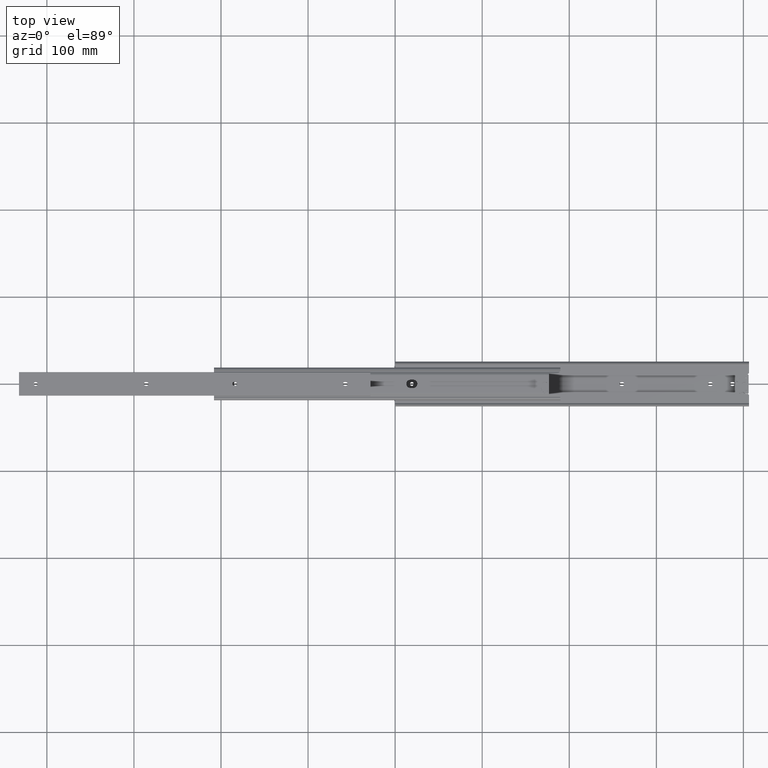
[diagram: clean part render]
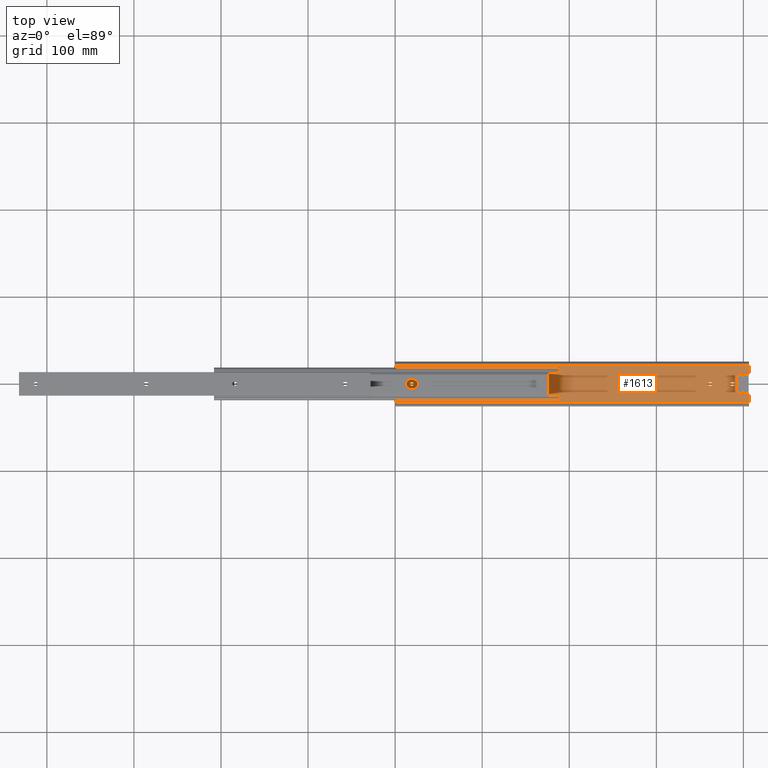
[diagram: same view with one face highlighted and labeled with its STEP entity id]
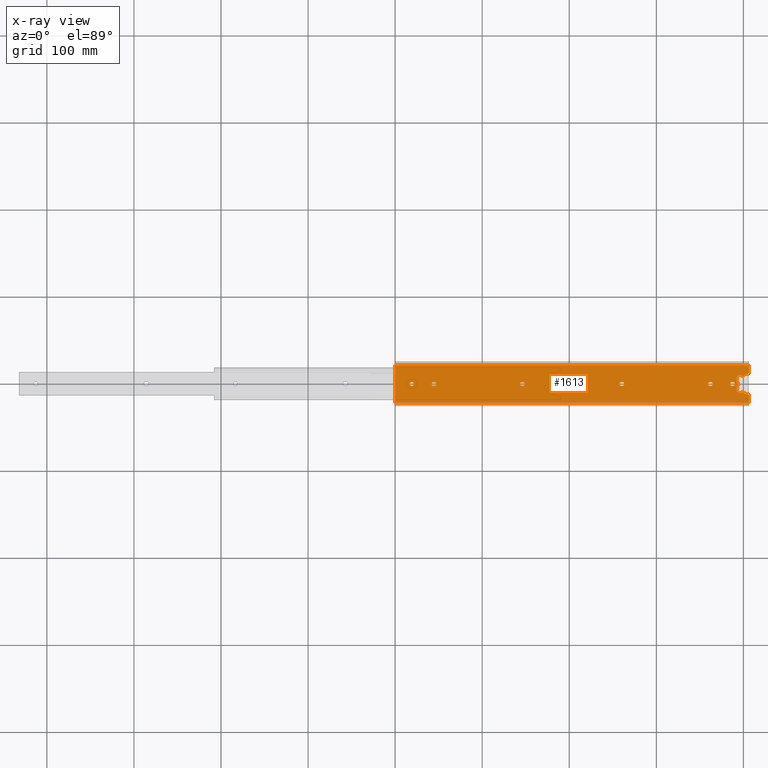
[diagram: x-ray of the same camera — body ghosted, the highlighted face saturated]
A machine part, top view. The second image highlights one B-rep face of the part: STEP entity #1613.
The next image is the same camera in x-ray: the body ghosted, the highlighted face saturated — about 0% of this face is hidden behind the body in this view.
In plain terms, the highlighted planar face has unit normal (0, 0, 1).
Its self-contained STEP definition (entity closure, byte-faithful):
#7 = CARTESIAN_POINT ( 'NONE',  ( 387.0000000000000000, 3.415968549201668300E-014, 1.799999999999928300 ) ) ;
#10 = VERTEX_POINT ( 'NONE', #342 ) ;
#14 = CIRCLE ( 'NONE', #4969, 2.000000000000001800 ) ;
#24 = EDGE_CURVE ( 'NONE', #1105, #7418, #5876, .T. ) ;
#26 = ORIENTED_EDGE ( 'NONE', *, *, #7127, .T. ) ;
#35 = DIRECTION ( 'NONE',  ( -1.392637613640382600E-014, 1.000000000000000000, 0.0000000000000000000 ) ) ;
#38 = CIRCLE ( 'NONE', #7074, 2.249999999999998700 ) ;
#52 = CARTESIAN_POINT ( 'NONE',  ( 44.90000000000000600, 5.374174154884625500E-015, 1.799999999999928300 ) ) ;
#62 = EDGE_CURVE ( 'NONE', #2327, #589, #5497, .T. ) ;
#67 = ORIENTED_EDGE ( 'NONE', *, *, #4934, .T. ) ;
#76 = DIRECTION ( 'NONE',  ( 1.000000000000000000, 0.0000000000000000000, 0.0000000000000000000 ) ) ;
#87 = CARTESIAN_POINT ( 'NONE',  ( 0.0000000000000000000, 21.29985872422196300, 1.799999999999928300 ) ) ;
#120 = DIRECTION ( 'NONE',  ( 1.000000000000000000, 0.0000000000000000000, 0.0000000000000000000 ) ) ;
#128 = DIRECTION ( 'NONE',  ( 1.000000000000000000, 0.0000000000000000000, 0.0000000000000000000 ) ) ;
#137 = EDGE_CURVE ( 'NONE', #6143, #7432, #291, .T. ) ;
#156 = DIRECTION ( 'NONE',  ( -0.0000000000000000000, -0.0000000000000000000, -1.000000000000000000 ) ) ;
#172 = DIRECTION ( 'NONE',  ( -0.0000000000000000000, -0.0000000000000000000, -1.000000000000000000 ) ) ;
#201 = ORIENTED_EDGE ( 'NONE', *, *, #261, .T. ) ;
#210 = DIRECTION ( 'NONE',  ( -1.000000000000000000, -0.0000000000000000000, 0.0000000000000000000 ) ) ;
#229 = CARTESIAN_POINT ( 'NONE',  ( 145.6999999999999900, 5.324886414075671300E-014, 1.799999999999928300 ) ) ;
#237 = CARTESIAN_POINT ( 'NONE',  ( 406.3999999999999800, -2.250000000000000400, 1.799999999999928300 ) ) ;
#238 = DIRECTION ( 'NONE',  ( 1.000000000000000000, 0.0000000000000000000, 0.0000000000000000000 ) ) ;
#244 = CIRCLE ( 'NONE', #2771, 2.249999999999974200 ) ;
#260 = CARTESIAN_POINT ( 'NONE',  ( 392.5999999999995700, 7.179898987321528200, 1.799999999999928300 ) ) ;
#261 = EDGE_CURVE ( 'NONE', #7385, #3245, #5774, .T. ) ;
#284 = CARTESIAN_POINT ( 'NONE',  ( 387.8000000000000700, 3.420867136398258000E-014, 1.799999999999928300 ) ) ;
#291 = LINE ( 'NONE', #4374, #4919 ) ;
#292 = DIRECTION ( 'NONE',  ( -0.0000000000000000000, -0.0000000000000000000, -1.000000000000000000 ) ) ;
#312 = EDGE_CURVE ( 'NONE', #1344, #2898, #785, .T. ) ;
#337 = VECTOR ( 'NONE', #4689, 1000.000000000000000 ) ;
#341 = CARTESIAN_POINT ( 'NONE',  ( 0.0000000000000000000, -21.29985872422196300, 1.799999999999928300 ) ) ;
#342 = CARTESIAN_POINT ( 'NONE',  ( 361.5999999999999100, -2.249999999999957400, 1.799999999999928300 ) ) ;
#366 = VERTEX_POINT ( 'NONE', #823 ) ;
#371 = AXIS2_PLACEMENT_3D ( 'NONE', #5198, #1604, #3155 ) ;
#374 = ORIENTED_EDGE ( 'NONE', *, *, #24, .T. ) ;
#377 = ORIENTED_EDGE ( 'NONE', *, *, #5664, .T. ) ;
#387 = LINE ( 'NONE', #3538, #6639 ) ;
#402 = DIRECTION ( 'NONE',  ( 1.000000000000000000, 0.0000000000000000000, 0.0000000000000000000 ) ) ;
#422 = AXIS2_PLACEMENT_3D ( 'NONE', #1854, #6084, #2460 ) ;
#432 = CARTESIAN_POINT ( 'NONE',  ( 406.3999999999999800, -2.249999999999954700, 1.799999999999928300 ) ) ;
#451 = EDGE_CURVE ( 'NONE', #1597, #6023, #1858, .T. ) ;
#477 = AXIS2_PLACEMENT_3D ( 'NONE', #2343, #6563, #2929 ) ;
#485 = VECTOR ( 'NONE', #1639, 1000.000000000000000 ) ;
#515 = LINE ( 'NONE', #834, #6750 ) ;
#532 = CARTESIAN_POINT ( 'NONE',  ( 145.6999999999999900, 5.324886414075671300E-014, 1.799999999999928300 ) ) ;
#548 = VERTEX_POINT ( 'NONE', #3202 ) ;
#568 = ORIENTED_EDGE ( 'NONE', *, *, #4998, .T. ) ;
#589 = VERTEX_POINT ( 'NONE', #7184 ) ;
#632 = AXIS2_PLACEMENT_3D ( 'NONE', #715, #4913, #1313 ) ;
#639 = DIRECTION ( 'NONE',  ( 1.000000000000000000, 0.0000000000000000000, 0.0000000000000000000 ) ) ;
#662 = CARTESIAN_POINT ( 'NONE',  ( 391.9999999999996000, 3.442382895611694400, 1.799999999999928300 ) ) ;
#676 = DIRECTION ( 'NONE',  ( 1.000000000000000000, 0.0000000000000000000, 0.0000000000000000000 ) ) ;
#703 = AXIS2_PLACEMENT_3D ( 'NONE', #3742, #3188, #3130 ) ;
#708 = ORIENTED_EDGE ( 'NONE', *, *, #2615, .F. ) ;
#715 = CARTESIAN_POINT ( 'NONE',  ( 401.7990452568617500, 10.50000000000000500, 1.799999999999928300 ) ) ;
#743 = ORIENTED_EDGE ( 'NONE', *, *, #4733, .T. ) ;
#775 = VERTEX_POINT ( 'NONE', #6392 ) ;
#785 = LINE ( 'NONE', #5083, #3589 ) ;
#804 = CARTESIAN_POINT ( 'NONE',  ( 387.0000000000000000, -2.250000000000000400, 1.799999999999928300 ) ) ;
#812 = ORIENTED_EDGE ( 'NONE', *, *, #5839, .T. ) ;
#823 = CARTESIAN_POINT ( 'NONE',  ( 260.0000000000000000, -2.249999999999954700, 1.799999999999928300 ) ) ;
#832 = CARTESIAN_POINT ( 'NONE',  ( 402.0317541634481100, 11.10000000000000500, 1.799999999999912800 ) ) ;
#834 = CARTESIAN_POINT ( 'NONE',  ( 394.5856957026417700, 10.01412282738758800, 1.799999999999928300 ) ) ;
#867 = DIRECTION ( 'NONE',  ( -1.000000000000000000, -0.0000000000000000000, 0.0000000000000000000 ) ) ;
#881 = CIRCLE ( 'NONE', #4940, 2.399999999999902200 ) ;
#889 = ORIENTED_EDGE ( 'NONE', *, *, #6912, .T. ) ;
#909 = DIRECTION ( 'NONE',  ( 1.000000000000000000, 0.0000000000000000000, 0.0000000000000000000 ) ) ;
#910 = DIRECTION ( 'NONE',  ( -0.0000000000000000000, -0.0000000000000000000, -1.000000000000000000 ) ) ;
#928 = VERTEX_POINT ( 'NONE', #2919 ) ;
#946 = DIRECTION ( 'NONE',  ( 0.0000000000000000000, 1.000000000000000000, 0.0000000000000000000 ) ) ;
#964 = VECTOR ( 'NONE', #946, 1000.000000000000000 ) ;
#968 = CARTESIAN_POINT ( 'NONE',  ( 44.90000000000004800, 2.250000000000000000, 1.799999999999928300 ) ) ;
#982 = FACE_BOUND ( 'NONE', #2255, .T. ) ;
#1002 = VERTEX_POINT ( 'NONE', #5232 ) ;
#1013 = VERTEX_POINT ( 'NONE', #2483 ) ;
#1105 = VERTEX_POINT ( 'NONE', #1122 ) ;
#1122 = CARTESIAN_POINT ( 'NONE',  ( 397.3962538539281000, -10.03176882133008400, 1.799999999999928300 ) ) ;
#1140 = DIRECTION ( 'NONE',  ( 1.000000000000000000, 0.0000000000000000000, 0.0000000000000000000 ) ) ;
#1147 = VERTEX_POINT ( 'NONE', #1276 ) ;
#1160 = CARTESIAN_POINT ( 'NONE',  ( 406.3999999999999800, -2.249999999999957400, 1.799999999999928300 ) ) ;
#1174 = FACE_BOUND ( 'NONE', #3352, .T. ) ;
#1198 = ORIENTED_EDGE ( 'NONE', *, *, #5614, .T. ) ;
#1224 = VECTOR ( 'NONE', #1583, 1000.000000000000000 ) ;
#1242 = DIRECTION ( 'NONE',  ( -0.0000000000000000000, -0.0000000000000000000, -1.000000000000000000 ) ) ;
#1265 = CIRCLE ( 'NONE', #1481, 0.5999999999999894300 ) ;
#1276 = CARTESIAN_POINT ( 'NONE',  ( 257.7500000000000600, 7.005605702383383900E-014, 1.799999999999928300 ) ) ;
#1285 = VERTEX_POINT ( 'NONE', #832 ) ;
#1313 = DIRECTION ( 'NONE',  ( 1.000000000000000000, 1.069746143519049900E-013, 0.0000000000000000000 ) ) ;
#1323 = CARTESIAN_POINT ( 'NONE',  ( 399.0718673606240800, 11.75000028890883100, 1.799999999999928300 ) ) ;
#1333 = DIRECTION ( 'NONE',  ( -0.0000000000000000000, -0.0000000000000000000, -1.000000000000000000 ) ) ;
#1335 = CARTESIAN_POINT ( 'NONE',  ( 401.7990452568617500, 11.10000000000000500, 1.799999999999928300 ) ) ;
#1344 = VERTEX_POINT ( 'NONE', #7344 ) ;
#1391 = ORIENTED_EDGE ( 'NONE', *, *, #451, .T. ) ;
#1392 = CARTESIAN_POINT ( 'NONE',  ( 406.3999999999999800, 21.29985872422196300, 1.799999999999928300 ) ) ;
#1414 = DIRECTION ( 'NONE',  ( -0.0000000000000000000, -0.0000000000000000000, -1.000000000000000000 ) ) ;
#1465 = ORIENTED_EDGE ( 'NONE', *, *, #5936, .T. ) ;
#1480 = CARTESIAN_POINT ( 'NONE',  ( 401.2536096776141800, -10.75000005778177200, 1.799999999999928300 ) ) ;
#1481 = AXIS2_PLACEMENT_3D ( 'NONE', #4842, #1242, #5461 ) ;
#1530 = AXIS2_PLACEMENT_3D ( 'NONE', #4936, #1333, #5561 ) ;
#1531 = CARTESIAN_POINT ( 'NONE',  ( 391.9999999999995500, -7.179898987321504200, 1.799999999999928300 ) ) ;
#1558 = CIRCLE ( 'NONE', #7623, 2.250000000000001800 ) ;
#1583 = DIRECTION ( 'NONE',  ( -1.000000000000000000, 0.0000000000000000000, 0.0000000000000000000 ) ) ;
#1597 = VERTEX_POINT ( 'NONE', #3761 ) ;
#1604 = DIRECTION ( 'NONE',  ( -0.0000000000000000000, -0.0000000000000000000, -1.000000000000000000 ) ) ;
#1606 = EDGE_CURVE ( 'NONE', #1002, #4125, #7574, .T. ) ;
#1613 = ADVANCED_FACE ( 'NONE', ( #5790, #1174, #4371, #7382, #4180, #2578, #982 ), #3232, .T. ) ;
#1629 = AXIS2_PLACEMENT_3D ( 'NONE', #7293, #3685, #76 ) ;
#1639 = DIRECTION ( 'NONE',  ( 0.0000000000000000000, 1.000000000000000000, 0.0000000000000000000 ) ) ;
#1651 = VERTEX_POINT ( 'NONE', #2579 ) ;
#1658 = VERTEX_POINT ( 'NONE', #6611 ) ;
#1682 = EDGE_CURVE ( 'NONE', #928, #3638, #5227, .T. ) ;
#1691 = CARTESIAN_POINT ( 'NONE',  ( 391.9999999999996000, -3.442382895611694400, 1.799999999999928300 ) ) ;
#1692 = CIRCLE ( 'NONE', #1530, 2.249999999999974200 ) ;
#1727 = CIRCLE ( 'NONE', #5534, 2.249999999999998700 ) ;
#1736 = CIRCLE ( 'NONE', #4199, 2.249999999999974200 ) ;
#1752 = ORIENTED_EDGE ( 'NONE', *, *, #4544, .T. ) ;
#1771 = CIRCLE ( 'NONE', #4029, 2.250000000000001800 ) ;
#1781 = EDGE_CURVE ( 'NONE', #7385, #7411, #4652, .T. ) ;
#1846 = CARTESIAN_POINT ( 'NONE',  ( 145.6999999999999900, -2.249999999999957800, 1.799999999999928300 ) ) ;
#1854 = CARTESIAN_POINT ( 'NONE',  ( 402.9999999999999400, 9.350000000000001400, 1.799999999999912800 ) ) ;
#1858 = CIRCLE ( 'NONE', #4258, 2.250000000000001800 ) ;
#1876 = EDGE_CURVE ( 'NONE', #6458, #7777, #3230, .T. ) ;
#1877 = AXIS2_PLACEMENT_3D ( 'NONE', #3210, #7428, #3815 ) ;
#1884 = VECTOR ( 'NONE', #3473, 1000.000000000000000 ) ;
#1903 = LINE ( 'NONE', #5269, #485 ) ;
#1930 = DIRECTION ( 'NONE',  ( 1.000000000000000000, 0.0000000000000000000, 0.0000000000000000000 ) ) ;
#1942 = ORIENTED_EDGE ( 'NONE', *, *, #4021, .T. ) ;
#1956 = DIRECTION ( 'NONE',  ( -0.0000000000000000000, -0.0000000000000000000, -1.000000000000000000 ) ) ;
#1970 = CIRCLE ( 'NONE', #1629, 2.000000000000001800 ) ;
#1996 = AXIS2_PLACEMENT_3D ( 'NONE', #260, #5925, #6956 ) ;
#2028 = CARTESIAN_POINT ( 'NONE',  ( 387.0000000000000000, 2.249999999999999600, 1.799999999999928300 ) ) ;
#2036 = LINE ( 'NONE', #4430, #2415 ) ;
#2057 = ORIENTED_EDGE ( 'NONE', *, *, #5590, .F. ) ;
#2070 = LINE ( 'NONE', #6063, #5094 ) ;
#2088 = VERTEX_POINT ( 'NONE', #5334 ) ;
#2143 = EDGE_CURVE ( 'NONE', #6772, #4469, #5410, .T. ) ;
#2201 = EDGE_LOOP ( 'NONE', ( #2227, #812, #4247, #7521, #3512 ) ) ;
#2220 = CIRCLE ( 'NONE', #5472, 2.000000000000001800 ) ;
#2226 = LINE ( 'NONE', #662, #6853 ) ;
#2227 = ORIENTED_EDGE ( 'NONE', *, *, #312, .T. ) ;
#2235 = CIRCLE ( 'NONE', #1877, 2.249999999999974200 ) ;
#2246 = CARTESIAN_POINT ( 'NONE',  ( 16.85000000000000500, 0.0000000000000000000, 1.799999999999928300 ) ) ;
#2255 = EDGE_LOOP ( 'NONE', ( #1198, #3760, #1752, #7226, #377 ) ) ;
#2274 = VECTOR ( 'NONE', #3980, 1000.000000000000000 ) ;
#2310 = AXIS2_PLACEMENT_3D ( 'NONE', #229, #156, #128 ) ;
#2320 = ORIENTED_EDGE ( 'NONE', *, *, #6039, .T. ) ;
#2327 = VERTEX_POINT ( 'NONE', #3281 ) ;
#2337 = LINE ( 'NONE', #4072, #337 ) ;
#2343 = CARTESIAN_POINT ( 'NONE',  ( 260.8000000000000100, 7.010504289579973500E-014, 1.799999999999928300 ) ) ;
#2366 = EDGE_CURVE ( 'NONE', #1105, #4098, #881, .T. ) ;
#2415 = VECTOR ( 'NONE', #3818, 1000.000000000000000 ) ;
#2421 = CARTESIAN_POINT ( 'NONE',  ( 145.6999999999999900, 2.250000000000041700, 1.799999999999928300 ) ) ;
#2424 = EDGE_CURVE ( 'NONE', #4750, #7381, #6542, .T. ) ;
#2428 = CARTESIAN_POINT ( 'NONE',  ( 395.9999092650148200, 8.599909265014520800, 1.799999999999928300 ) ) ;
#2460 = DIRECTION ( 'NONE',  ( 1.000000000000000000, -1.647987302177965200E-014, 0.0000000000000000000 ) ) ;
#2483 = CARTESIAN_POINT ( 'NONE',  ( 391.9999999999996000, 3.442382895611694400, 1.799999999999928300 ) ) ;
#2504 = CARTESIAN_POINT ( 'NONE',  ( 44.09999999999999400, 2.250000000000000000, 1.799999999999928300 ) ) ;
#2551 = CARTESIAN_POINT ( 'NONE',  ( 44.09999999999999400, 5.325188282918731300E-015, 1.799999999999928300 ) ) ;
#2578 = FACE_BOUND ( 'NONE', #7793, .T. ) ;
#2579 = CARTESIAN_POINT ( 'NONE',  ( 387.8000000000000100, -2.249999999999965400, 1.799999999999928300 ) ) ;
#2615 = EDGE_CURVE ( 'NONE', #2088, #3333, #387, .T. ) ;
#2641 = ORIENTED_EDGE ( 'NONE', *, *, #4749, .T. ) ;
#2667 = EDGE_CURVE ( 'NONE', #2802, #775, #3216, .T. ) ;
#2680 = CARTESIAN_POINT ( 'NONE',  ( 404.3999999999999800, -11.35000000000000100, 1.799999999999928300 ) ) ;
#2690 = ORIENTED_EDGE ( 'NONE', *, *, #3921, .F. ) ;
#2751 = VERTEX_POINT ( 'NONE', #7711 ) ;
#2771 = AXIS2_PLACEMENT_3D ( 'NONE', #7340, #3734, #120 ) ;
#2778 = DIRECTION ( 'NONE',  ( -0.0000000000000000000, -0.0000000000000000000, -1.000000000000000000 ) ) ;
#2802 = VERTEX_POINT ( 'NONE', #5382 ) ;
#2822 = DIRECTION ( 'NONE',  ( 0.0000000000000000000, 0.0000000000000000000, 1.000000000000000000 ) ) ;
#2836 = EDGE_CURVE ( 'NONE', #6772, #5184, #3301, .T. ) ;
#2849 = VECTOR ( 'NONE', #6000, 1000.000000000000000 ) ;
#2853 = EDGE_CURVE ( 'NONE', #4011, #6855, #3494, .T. ) ;
#2887 = ORIENTED_EDGE ( 'NONE', *, *, #2667, .T. ) ;
#2898 = VERTEX_POINT ( 'NONE', #1846 ) ;
#2904 = ORIENTED_EDGE ( 'NONE', *, *, #7427, .T. ) ;
#2919 = CARTESIAN_POINT ( 'NONE',  ( 143.4499999999999900, 5.324886414075671300E-014, 1.799999999999928300 ) ) ;
#2929 = DIRECTION ( 'NONE',  ( 1.000000000000000000, 0.0000000000000000000, 0.0000000000000000000 ) ) ;
#2985 = AXIS2_PLACEMENT_3D ( 'NONE', #6882, #3263, #7486 ) ;
#3016 = DIRECTION ( 'NONE',  ( 1.000000000000000000, 0.0000000000000000000, 0.0000000000000000000 ) ) ;
#3017 = CARTESIAN_POINT ( 'NONE',  ( 401.2536096776141800, 10.75000005778178500, 1.799999999999928300 ) ) ;
#3018 = EDGE_LOOP ( 'NONE', ( #2887, #4239, #1391, #4138, #2641 ) ) ;
#3034 = DIRECTION ( 'NONE',  ( 1.000000000000000000, 0.0000000000000000000, -0.0000000000000000000 ) ) ;
#3044 = LINE ( 'NONE', #1160, #2849 ) ;
#3045 = CARTESIAN_POINT ( 'NONE',  ( 362.4000000000000300, 2.250000000000042200, 1.799999999999928300 ) ) ;
#3092 = CARTESIAN_POINT ( 'NONE',  ( 362.3999999999999800, 7.331010313246310500E-014, 1.799999999999928300 ) ) ;
#3130 = DIRECTION ( 'NONE',  ( 1.000000000000000000, 0.0000000000000000000, -0.0000000000000000000 ) ) ;
#3153 = DIRECTION ( 'NONE',  ( 1.000000000000000000, 0.0000000000000000000, 0.0000000000000000000 ) ) ;
#3155 = DIRECTION ( 'NONE',  ( -1.000000000000000000, 0.0000000000000000000, 0.0000000000000000000 ) ) ;
#3164 = VERTEX_POINT ( 'NONE', #6895 ) ;
#3188 = DIRECTION ( 'NONE',  ( 0.0000000000000000000, 0.0000000000000000000, 1.000000000000000000 ) ) ;
#3189 = CIRCLE ( 'NONE', #4049, 2.250000000000001800 ) ;
#3202 = CARTESIAN_POINT ( 'NONE',  ( 401.7990452568617500, -11.09999999999999300, 1.799999999999928300 ) ) ;
#3210 = CARTESIAN_POINT ( 'NONE',  ( 260.0000000000000000, 7.005605702383383900E-014, 1.799999999999928300 ) ) ;
#3216 = LINE ( 'NONE', #5219, #6264 ) ;
#3228 = VERTEX_POINT ( 'NONE', #968 ) ;
#3230 = LINE ( 'NONE', #4776, #5701 ) ;
#3232 = PLANE ( 'NONE',  #703 ) ;
#3233 = CIRCLE ( 'NONE', #6094, 2.250000000000001800 ) ;
#3234 = EDGE_CURVE ( 'NONE', #3919, #4491, #3866, .T. ) ;
#3237 = DIRECTION ( 'NONE',  ( -0.7071067811865522400, -0.7071067811865428000, 0.0000000000000000000 ) ) ;
#3245 = VERTEX_POINT ( 'NONE', #7573 ) ;
#3263 = DIRECTION ( 'NONE',  ( 0.0000000000000000000, 0.0000000000000000000, 1.000000000000000000 ) ) ;
#3280 = EDGE_CURVE ( 'NONE', #7411, #7119, #1903, .T. ) ;
#3281 = CARTESIAN_POINT ( 'NONE',  ( 391.9999999999995500, 7.179898987321519300, 1.799999999999928300 ) ) ;
#3301 = CIRCLE ( 'NONE', #4228, 1.999999999999946300 ) ;
#3328 = CARTESIAN_POINT ( 'NONE',  ( 399.0718673606240800, -11.75000028890881700, 1.799999999999928300 ) ) ;
#3333 = VERTEX_POINT ( 'NONE', #2680 ) ;
#3352 = EDGE_LOOP ( 'NONE', ( #568, #2320 ) ) ;
#3473 = DIRECTION ( 'NONE',  ( -1.392637613640386800E-014, -1.000000000000000000, 0.0000000000000000000 ) ) ;
#3494 = CIRCLE ( 'NONE', #3824, 2.249999999999974200 ) ;
#3512 = ORIENTED_EDGE ( 'NONE', *, *, #3838, .T. ) ;
#3518 = LINE ( 'NONE', #237, #5333 ) ;
#3530 = LINE ( 'NONE', #3640, #4963 ) ;
#3538 = CARTESIAN_POINT ( 'NONE',  ( 406.3999999999999800, -11.35000000000000000, 1.799999999999928300 ) ) ;
#3547 = CARTESIAN_POINT ( 'NONE',  ( 362.4000000000000300, -2.249999999999926700, 1.799999999999928300 ) ) ;
#3569 = CARTESIAN_POINT ( 'NONE',  ( 406.3999999999999800, 21.29985872422196300, 1.799999999999928300 ) ) ;
#3589 = VECTOR ( 'NONE', #867, 1000.000000000000000 ) ;
#3638 = VERTEX_POINT ( 'NONE', #2421 ) ;
#3640 = CARTESIAN_POINT ( 'NONE',  ( 394.5856957026417700, -10.01412282738755800, 1.799999999999928300 ) ) ;
#3641 = ORIENTED_EDGE ( 'NONE', *, *, #2366, .F. ) ;
#3685 = DIRECTION ( 'NONE',  ( 0.0000000000000000000, 0.0000000000000000000, 1.000000000000000000 ) ) ;
#3695 = DIRECTION ( 'NONE',  ( 1.000000000000000000, 0.0000000000000000000, 0.0000000000000000000 ) ) ;
#3734 = DIRECTION ( 'NONE',  ( -0.0000000000000000000, -0.0000000000000000000, -1.000000000000000000 ) ) ;
#3742 = CARTESIAN_POINT ( 'NONE',  ( 406.3999999999999800, 0.0000000000000000000, 1.799999999999928300 ) ) ;
#3749 = CIRCLE ( 'NONE', #422, 2.000000000000001800 ) ;
#3760 = ORIENTED_EDGE ( 'NONE', *, *, #2853, .T. ) ;
#3761 = CARTESIAN_POINT ( 'NONE',  ( 41.84999999999999400, 5.325188282918731300E-015, 1.799999999999928300 ) ) ;
#3763 = ORIENTED_EDGE ( 'NONE', *, *, #3234, .T. ) ;
#3772 = VERTEX_POINT ( 'NONE', #6751 ) ;
#3776 = CARTESIAN_POINT ( 'NONE',  ( 260.0000000000000000, 7.005605702383383900E-014, 1.799999999999928300 ) ) ;
#3780 = ORIENTED_EDGE ( 'NONE', *, *, #62, .T. ) ;
#3812 = CARTESIAN_POINT ( 'NONE',  ( 406.3999999999999800, 11.35000000000000000, 1.799999999999928300 ) ) ;
#3815 = DIRECTION ( 'NONE',  ( 1.000000000000000000, 0.0000000000000000000, 0.0000000000000000000 ) ) ;
#3818 = DIRECTION ( 'NONE',  ( 0.0000000000000000000, 1.000000000000000000, 0.0000000000000000000 ) ) ;
#3824 = AXIS2_PLACEMENT_3D ( 'NONE', #7, #4230, #639 ) ;
#3838 = EDGE_CURVE ( 'NONE', #1658, #1344, #1771, .T. ) ;
#3846 = DIRECTION ( 'NONE',  ( 0.0000000000000000000, 0.0000000000000000000, 1.000000000000000000 ) ) ;
#3860 = ORIENTED_EDGE ( 'NONE', *, *, #6967, .T. ) ;
#3866 = LINE ( 'NONE', #6405, #2274 ) ;
#3899 = CARTESIAN_POINT ( 'NONE',  ( 361.5999999999999100, 7.326111726049720900E-014, 1.799999999999928300 ) ) ;
#3919 = VERTEX_POINT ( 'NONE', #5080 ) ;
#3921 = EDGE_CURVE ( 'NONE', #1285, #6714, #7417, .T. ) ;
#3929 = CARTESIAN_POINT ( 'NONE',  ( 406.3999999999999800, 0.0000000000000000000, 1.799999999999928300 ) ) ;
#3933 = EDGE_CURVE ( 'NONE', #10, #3772, #4214, .T. ) ;
#3934 = DIRECTION ( 'NONE',  ( -1.000000000000000000, 0.0000000000000000000, 0.0000000000000000000 ) ) ;
#3968 = CARTESIAN_POINT ( 'NONE',  ( 387.8000000000000100, 2.249999999999999600, 1.799999999999928300 ) ) ;
#3979 = CARTESIAN_POINT ( 'NONE',  ( 21.35000000000000100, 2.755455298081543800E-016, 1.799999999999928300 ) ) ;
#3980 = DIRECTION ( 'NONE',  ( 1.000000000000000000, 0.0000000000000000000, -0.0000000000000000000 ) ) ;
#4011 = VERTEX_POINT ( 'NONE', #804 ) ;
#4021 = EDGE_CURVE ( 'NONE', #1147, #6458, #2235, .T. ) ;
#4029 = AXIS2_PLACEMENT_3D ( 'NONE', #5027, #1414, #5646 ) ;
#4049 = AXIS2_PLACEMENT_3D ( 'NONE', #2551, #6788, #3153 ) ;
#4072 = CARTESIAN_POINT ( 'NONE',  ( 406.3999999999999800, 2.250000000000041700, 1.799999999999928300 ) ) ;
#4098 = VERTEX_POINT ( 'NONE', #1480 ) ;
#4101 = ORIENTED_EDGE ( 'NONE', *, *, #1781, .F. ) ;
#4114 = ORIENTED_EDGE ( 'NONE', *, *, #7101, .T. ) ;
#4125 = VERTEX_POINT ( 'NONE', #6345 ) ;
#4138 = ORIENTED_EDGE ( 'NONE', *, *, #7069, .T. ) ;
#4139 = ORIENTED_EDGE ( 'NONE', *, *, #6678, .T. ) ;
#4164 = DIRECTION ( 'NONE',  ( 1.000000000000000000, -1.020425574103999900E-015, 0.0000000000000000000 ) ) ;
#4180 = FACE_BOUND ( 'NONE', #6766, .T. ) ;
#4199 = AXIS2_PLACEMENT_3D ( 'NONE', #284, #4510, #909 ) ;
#4206 = ORIENTED_EDGE ( 'NONE', *, *, #3280, .F. ) ;
#4214 = CIRCLE ( 'NONE', #6476, 2.249999999999974200 ) ;
#4228 = AXIS2_PLACEMENT_3D ( 'NONE', #2428, #6652, #3016 ) ;
#4230 = DIRECTION ( 'NONE',  ( -0.0000000000000000000, -0.0000000000000000000, -1.000000000000000000 ) ) ;
#4239 = ORIENTED_EDGE ( 'NONE', *, *, #7768, .T. ) ;
#4243 = DIRECTION ( 'NONE',  ( -0.7071067811865546800, 0.7071067811865404700, 0.0000000000000000000 ) ) ;
#4247 = ORIENTED_EDGE ( 'NONE', *, *, #1682, .T. ) ;
#4258 = AXIS2_PLACEMENT_3D ( 'NONE', #5241, #4624, #402 ) ;
#4264 = ORIENTED_EDGE ( 'NONE', *, *, #7709, .F. ) ;
#4265 = DIRECTION ( 'NONE',  ( -0.0000000000000000000, -0.0000000000000000000, -1.000000000000000000 ) ) ;
#4313 = EDGE_CURVE ( 'NONE', #3638, #1658, #2337, .T. ) ;
#4371 = FACE_BOUND ( 'NONE', #3018, .T. ) ;
#4374 = CARTESIAN_POINT ( 'NONE',  ( 406.3999999999999800, 2.249999999999999600, 1.799999999999928300 ) ) ;
#4395 = DIRECTION ( 'NONE',  ( 1.000000000000000000, 0.0000000000000000000, 0.0000000000000000000 ) ) ;
#4399 = EDGE_CURVE ( 'NONE', #6761, #7119, #7598, .T. ) ;
#4416 = CARTESIAN_POINT ( 'NONE',  ( 397.3962538539281000, 10.03176882133011500, 1.799999999999928300 ) ) ;
#4430 = CARTESIAN_POINT ( 'NONE',  ( 406.3999999999999800, 0.0000000000000000000, 1.799999999999928300 ) ) ;
#4469 = VERTEX_POINT ( 'NONE', #3017 ) ;
#4491 = VERTEX_POINT ( 'NONE', #3045 ) ;
#4496 = DIRECTION ( 'NONE',  ( -1.000000000000000000, 0.0000000000000000000, 0.0000000000000000000 ) ) ;
#4498 = EDGE_CURVE ( 'NONE', #1013, #2327, #2226, .T. ) ;
#4510 = DIRECTION ( 'NONE',  ( -0.0000000000000000000, -0.0000000000000000000, -1.000000000000000000 ) ) ;
#4511 = CARTESIAN_POINT ( 'NONE',  ( 19.10000000000000100, 0.0000000000000000000, 1.799999999999928300 ) ) ;
#4519 = DIRECTION ( 'NONE',  ( 1.000000000000000000, 0.0000000000000000000, 0.0000000000000000000 ) ) ;
#4544 = EDGE_CURVE ( 'NONE', #6855, #6143, #244, .T. ) ;
#4594 = EDGE_CURVE ( 'NONE', #366, #1147, #4676, .T. ) ;
#4599 = ORIENTED_EDGE ( 'NONE', *, *, #2424, .T. ) ;
#4624 = DIRECTION ( 'NONE',  ( -0.0000000000000000000, -0.0000000000000000000, -1.000000000000000000 ) ) ;
#4641 = ORIENTED_EDGE ( 'NONE', *, *, #4498, .T. ) ;
#4652 = LINE ( 'NONE', #6110, #7663 ) ;
#4676 = CIRCLE ( 'NONE', #5207, 2.249999999999974200 ) ;
#4689 = DIRECTION ( 'NONE',  ( 1.000000000000000000, 0.0000000000000000000, -0.0000000000000000000 ) ) ;
#4733 = EDGE_CURVE ( 'NONE', #7418, #4750, #3530, .T. ) ;
#4737 = DIRECTION ( 'NONE',  ( -0.0000000000000000000, -0.0000000000000000000, -1.000000000000000000 ) ) ;
#4749 = EDGE_CURVE ( 'NONE', #3228, #2802, #1558, .T. ) ;
#4750 = VERTEX_POINT ( 'NONE', #7272 ) ;
#4776 = CARTESIAN_POINT ( 'NONE',  ( 406.3999999999999800, 2.250000000000044900, 1.799999999999928300 ) ) ;
#4808 = LINE ( 'NONE', #432, #6245 ) ;
#4838 = ORIENTED_EDGE ( 'NONE', *, *, #2143, .T. ) ;
#4842 = CARTESIAN_POINT ( 'NONE',  ( 401.7990452568617500, -10.49999999999999100, 1.799999999999928300 ) ) ;
#4885 = ORIENTED_EDGE ( 'NONE', *, *, #5868, .T. ) ;
#4904 = CIRCLE ( 'NONE', #632, 0.5999999999999894300 ) ;
#4910 = EDGE_CURVE ( 'NONE', #6695, #6761, #2036, .T. ) ;
#4913 = DIRECTION ( 'NONE',  ( -0.0000000000000000000, -0.0000000000000000000, -1.000000000000000000 ) ) ;
#4919 = VECTOR ( 'NONE', #6322, 1000.000000000000000 ) ;
#4934 = EDGE_CURVE ( 'NONE', #3245, #3333, #2220, .T. ) ;
#4936 = CARTESIAN_POINT ( 'NONE',  ( 361.5999999999999100, 7.326111726049720900E-014, 1.799999999999928300 ) ) ;
#4940 = AXIS2_PLACEMENT_3D ( 'NONE', #3328, #7552, #3934 ) ;
#4963 = VECTOR ( 'NONE', #4243, 1000.000000000000100 ) ;
#4969 = AXIS2_PLACEMENT_3D ( 'NONE', #6456, #2822, #7050 ) ;
#4973 = ORIENTED_EDGE ( 'NONE', *, *, #6332, .T. ) ;
#4998 = EDGE_CURVE ( 'NONE', #7477, #6854, #38, .T. ) ;
#5027 = CARTESIAN_POINT ( 'NONE',  ( 146.5000000000000300, 5.329785001272260300E-014, 1.799999999999928300 ) ) ;
#5080 = CARTESIAN_POINT ( 'NONE',  ( 361.5999999999999100, 2.250000000000042200, 1.799999999999928300 ) ) ;
#5083 = CARTESIAN_POINT ( 'NONE',  ( 406.3999999999999800, -2.249999999999957800, 1.799999999999928300 ) ) ;
#5094 = VECTOR ( 'NONE', #3034, 1000.000000000000000 ) ;
#5096 = AXIS2_PLACEMENT_3D ( 'NONE', #1323, #5548, #1930 ) ;
#5118 = DIRECTION ( 'NONE',  ( 1.000000000000000000, 0.0000000000000000000, 0.0000000000000000000 ) ) ;
#5184 = VERTEX_POINT ( 'NONE', #7138 ) ;
#5190 = ORIENTED_EDGE ( 'NONE', *, *, #7519, .F. ) ;
#5197 = CARTESIAN_POINT ( 'NONE',  ( 406.0000000000000000, -11.09999999999999300, 1.799999999999928300 ) ) ;
#5198 = CARTESIAN_POINT ( 'NONE',  ( 395.9999092650148200, -8.599909265014506600, 1.799999999999928300 ) ) ;
#5207 = AXIS2_PLACEMENT_3D ( 'NONE', #3776, #172, #4395 ) ;
#5212 = VERTEX_POINT ( 'NONE', #3547 ) ;
#5219 = CARTESIAN_POINT ( 'NONE',  ( 406.3999999999999800, -2.250000000000000000, 1.799999999999928300 ) ) ;
#5227 = CIRCLE ( 'NONE', #2310, 2.250000000000001800 ) ;
#5232 = CARTESIAN_POINT ( 'NONE',  ( 402.9999999999999400, 11.35000000000000300, 1.799999999999912800 ) ) ;
#5241 = CARTESIAN_POINT ( 'NONE',  ( 44.09999999999999400, 5.325188282918731300E-015, 1.799999999999928300 ) ) ;
#5268 = DIRECTION ( 'NONE',  ( -1.000000000000000000, -0.0000000000000000000, 0.0000000000000000000 ) ) ;
#5269 = CARTESIAN_POINT ( 'NONE',  ( 0.0000000000000000000, 0.0000000000000000000, 1.799999999999928300 ) ) ;
#5333 = VECTOR ( 'NONE', #210, 1000.000000000000000 ) ;
#5334 = CARTESIAN_POINT ( 'NONE',  ( 402.9999999999999400, -11.35000000000000300, 1.799999999999912800 ) ) ;
#5382 = CARTESIAN_POINT ( 'NONE',  ( 44.90000000000000600, -2.249999999999994700, 1.799999999999928300 ) ) ;
#5410 = CIRCLE ( 'NONE', #5096, 2.399999999999902200 ) ;
#5461 = DIRECTION ( 'NONE',  ( 1.000000000000000000, 3.758567531283148500E-014, 0.0000000000000000000 ) ) ;
#5472 = AXIS2_PLACEMENT_3D ( 'NONE', #7457, #3846, #238 ) ;
#5497 = CIRCLE ( 'NONE', #1996, 0.5999999999999894300 ) ;
#5520 = DIRECTION ( 'NONE',  ( -1.000000000000000000, -0.0000000000000000000, -0.0000000000000000000 ) ) ;
#5534 = AXIS2_PLACEMENT_3D ( 'NONE', #5571, #1956, #6186 ) ;
#5548 = DIRECTION ( 'NONE',  ( 0.0000000000000000000, 0.0000000000000000000, 1.000000000000000000 ) ) ;
#5561 = DIRECTION ( 'NONE',  ( 1.000000000000000000, 0.0000000000000000000, 0.0000000000000000000 ) ) ;
#5565 = CARTESIAN_POINT ( 'NONE',  ( 406.3999999999999800, 13.35000000000000100, 1.799999999999928300 ) ) ;
#5571 = CARTESIAN_POINT ( 'NONE',  ( 19.10000000000000100, 0.0000000000000000000, 1.799999999999928300 ) ) ;
#5590 = EDGE_CURVE ( 'NONE', #5184, #589, #515, .T. ) ;
#5614 = EDGE_CURVE ( 'NONE', #1651, #4011, #3518, .T. ) ;
#5621 = EDGE_CURVE ( 'NONE', #7731, #1013, #6924, .T. ) ;
#5646 = DIRECTION ( 'NONE',  ( 1.000000000000000000, 0.0000000000000000000, 0.0000000000000000000 ) ) ;
#5664 = EDGE_CURVE ( 'NONE', #7432, #1651, #1736, .T. ) ;
#5701 = VECTOR ( 'NONE', #6142, 1000.000000000000000 ) ;
#5729 = EDGE_LOOP ( 'NONE', ( #2904, #1465, #3641, #374, #743, #4599, #5190, #7792, #4641, #3780, #2057, #6096, #4838, #4139, #2690, #6026, #7833, #4973, #7146, #6250, #4206, #4101, #201, #67, #708, #4264 ) ) ;
#5754 = AXIS2_PLACEMENT_3D ( 'NONE', #6409, #2778, #6996 ) ;
#5757 = CARTESIAN_POINT ( 'NONE',  ( 406.3999999999999800, -21.29985872422196300, 1.799999999999928300 ) ) ;
#5774 = LINE ( 'NONE', #3929, #964 ) ;
#5790 = FACE_OUTER_BOUND ( 'NONE', #5729, .T. ) ;
#5818 = CARTESIAN_POINT ( 'NONE',  ( 384.7500000000000600, 3.415968549201668300E-014, 1.799999999999928300 ) ) ;
#5829 = VECTOR ( 'NONE', #4496, 1000.000000000000000 ) ;
#5839 = EDGE_CURVE ( 'NONE', #2898, #928, #3233, .T. ) ;
#5868 = EDGE_CURVE ( 'NONE', #5212, #10, #3044, .T. ) ;
#5876 = CIRCLE ( 'NONE', #371, 1.999999999999946300 ) ;
#5925 = DIRECTION ( 'NONE',  ( -0.0000000000000000000, -0.0000000000000000000, -1.000000000000000000 ) ) ;
#5936 = EDGE_CURVE ( 'NONE', #548, #4098, #1265, .T. ) ;
#6000 = DIRECTION ( 'NONE',  ( -1.000000000000000000, -0.0000000000000000000, 0.0000000000000000000 ) ) ;
#6023 = VERTEX_POINT ( 'NONE', #2504 ) ;
#6026 = ORIENTED_EDGE ( 'NONE', *, *, #7670, .T. ) ;
#6039 = EDGE_CURVE ( 'NONE', #6854, #7477, #1727, .T. ) ;
#6051 = CIRCLE ( 'NONE', #477, 2.249999999999974200 ) ;
#6063 = CARTESIAN_POINT ( 'NONE',  ( 406.3999999999999800, 2.250000000000000000, 1.799999999999928300 ) ) ;
#6084 = DIRECTION ( 'NONE',  ( -0.0000000000000000000, -0.0000000000000000000, -1.000000000000000000 ) ) ;
#6094 = AXIS2_PLACEMENT_3D ( 'NONE', #532, #4737, #1140 ) ;
#6096 = ORIENTED_EDGE ( 'NONE', *, *, #2836, .F. ) ;
#6110 = CARTESIAN_POINT ( 'NONE',  ( 406.3999999999999800, -21.29985872422196300, 1.799999999999928300 ) ) ;
#6142 = DIRECTION ( 'NONE',  ( 1.000000000000000000, 0.0000000000000000000, -0.0000000000000000000 ) ) ;
#6143 = VERTEX_POINT ( 'NONE', #2028 ) ;
#6186 = DIRECTION ( 'NONE',  ( 1.000000000000000000, 0.0000000000000000000, 0.0000000000000000000 ) ) ;
#6192 = CARTESIAN_POINT ( 'NONE',  ( 260.8000000000000100, 2.250000000000044900, 1.799999999999928300 ) ) ;
#6209 = ORIENTED_EDGE ( 'NONE', *, *, #1876, .T. ) ;
#6245 = VECTOR ( 'NONE', #5268, 1000.000000000000000 ) ;
#6250 = ORIENTED_EDGE ( 'NONE', *, *, #4399, .T. ) ;
#6264 = VECTOR ( 'NONE', #6440, 1000.000000000000000 ) ;
#6322 = DIRECTION ( 'NONE',  ( 1.000000000000000000, 0.0000000000000000000, -0.0000000000000000000 ) ) ;
#6332 = EDGE_CURVE ( 'NONE', #4125, #6695, #14, .T. ) ;
#6345 = CARTESIAN_POINT ( 'NONE',  ( 404.3999999999999800, 11.35000000000000100, 1.799999999999928300 ) ) ;
#6373 = VECTOR ( 'NONE', #4164, 1000.000000000000000 ) ;
#6392 = CARTESIAN_POINT ( 'NONE',  ( 44.09999999999999400, -2.250000000000000000, 1.799999999999928300 ) ) ;
#6405 = CARTESIAN_POINT ( 'NONE',  ( 406.3999999999999800, 2.250000000000042200, 1.799999999999928300 ) ) ;
#6409 = CARTESIAN_POINT ( 'NONE',  ( 392.5999999999995700, -7.179898987321513100, 1.799999999999928300 ) ) ;
#6413 = ORIENTED_EDGE ( 'NONE', *, *, #4594, .T. ) ;
#6440 = DIRECTION ( 'NONE',  ( -1.000000000000000000, -0.0000000000000000000, 0.0000000000000000000 ) ) ;
#6456 = CARTESIAN_POINT ( 'NONE',  ( 404.3999999999999800, 13.35000000000000100, 1.799999999999928300 ) ) ;
#6458 = VERTEX_POINT ( 'NONE', #7178 ) ;
#6476 = AXIS2_PLACEMENT_3D ( 'NONE', #3899, #292, #4519 ) ;
#6507 = LINE ( 'NONE', #1691, #1884 ) ;
#6542 = CIRCLE ( 'NONE', #5754, 0.5999999999999894300 ) ;
#6563 = DIRECTION ( 'NONE',  ( -0.0000000000000000000, -0.0000000000000000000, -1.000000000000000000 ) ) ;
#6598 = DIRECTION ( 'NONE',  ( 1.000000000000000000, 1.020425574103999900E-015, -0.0000000000000000000 ) ) ;
#6611 = CARTESIAN_POINT ( 'NONE',  ( 146.5000000000000300, 2.250000000000041700, 1.799999999999928300 ) ) ;
#6639 = VECTOR ( 'NONE', #6598, 1000.000000000000000 ) ;
#6652 = DIRECTION ( 'NONE',  ( 0.0000000000000000000, 0.0000000000000000000, 1.000000000000000000 ) ) ;
#6664 = ORIENTED_EDGE ( 'NONE', *, *, #3933, .T. ) ;
#6678 = EDGE_CURVE ( 'NONE', #4469, #6714, #4904, .T. ) ;
#6695 = VERTEX_POINT ( 'NONE', #5565 ) ;
#6706 = CIRCLE ( 'NONE', #7738, 2.249999999999974200 ) ;
#6714 = VERTEX_POINT ( 'NONE', #1335 ) ;
#6736 = CARTESIAN_POINT ( 'NONE',  ( 391.9999999999996000, -3.442382895611694400, 1.799999999999928300 ) ) ;
#6750 = VECTOR ( 'NONE', #3237, 1000.000000000000000 ) ;
#6751 = CARTESIAN_POINT ( 'NONE',  ( 359.3499999999999700, 7.326111726049720900E-014, 1.799999999999928300 ) ) ;
#6761 = VERTEX_POINT ( 'NONE', #1392 ) ;
#6766 = EDGE_LOOP ( 'NONE', ( #889, #6413, #1942, #6209, #3860 ) ) ;
#6772 = VERTEX_POINT ( 'NONE', #4416 ) ;
#6788 = DIRECTION ( 'NONE',  ( -0.0000000000000000000, -0.0000000000000000000, -1.000000000000000000 ) ) ;
#6853 = VECTOR ( 'NONE', #35, 1000.000000000000000 ) ;
#6854 = VERTEX_POINT ( 'NONE', #3979 ) ;
#6855 = VERTEX_POINT ( 'NONE', #5818 ) ;
#6882 = CARTESIAN_POINT ( 'NONE',  ( 388.7999999999996700, 0.0000000000000000000, 1.799999999999928300 ) ) ;
#6893 = CARTESIAN_POINT ( 'NONE',  ( 406.0000000000000000, 11.10000000000000500, 1.799999999999928300 ) ) ;
#6895 = CARTESIAN_POINT ( 'NONE',  ( 260.8000000000000100, -2.249999999999929400, 1.799999999999928300 ) ) ;
#6912 = EDGE_CURVE ( 'NONE', #3164, #366, #4808, .T. ) ;
#6924 = CIRCLE ( 'NONE', #2985, 4.699999999999981500 ) ;
#6956 = DIRECTION ( 'NONE',  ( 1.000000000000000000, 1.301042606982628200E-014, 0.0000000000000000000 ) ) ;
#6967 = EDGE_CURVE ( 'NONE', #7777, #3164, #6051, .T. ) ;
#6986 = CARTESIAN_POINT ( 'NONE',  ( 394.5856957026417700, -10.01412282738756300, 1.799999999999928300 ) ) ;
#6996 = DIRECTION ( 'NONE',  ( 1.000000000000000000, 2.168404344971047000E-014, 0.0000000000000000000 ) ) ;
#7050 = DIRECTION ( 'NONE',  ( 1.000000000000000000, 0.0000000000000000000, 0.0000000000000000000 ) ) ;
#7069 = EDGE_CURVE ( 'NONE', #6023, #3228, #2070, .T. ) ;
#7074 = AXIS2_PLACEMENT_3D ( 'NONE', #4511, #910, #5118 ) ;
#7101 = EDGE_CURVE ( 'NONE', #4491, #5212, #6706, .T. ) ;
#7119 = VERTEX_POINT ( 'NONE', #87 ) ;
#7127 = EDGE_CURVE ( 'NONE', #3772, #3919, #1692, .T. ) ;
#7138 = CARTESIAN_POINT ( 'NONE',  ( 394.5856957026417700, 10.01412282738758800, 1.799999999999928300 ) ) ;
#7146 = ORIENTED_EDGE ( 'NONE', *, *, #4910, .T. ) ;
#7178 = CARTESIAN_POINT ( 'NONE',  ( 260.0000000000000000, 2.250000000000044900, 1.799999999999928300 ) ) ;
#7184 = CARTESIAN_POINT ( 'NONE',  ( 392.1757359312876500, 7.604163056033455900, 1.799999999999928300 ) ) ;
#7226 = ORIENTED_EDGE ( 'NONE', *, *, #137, .T. ) ;
#7246 = LINE ( 'NONE', #5197, #1224 ) ;
#7272 = CARTESIAN_POINT ( 'NONE',  ( 392.1757359312876500, -7.604163056033443400, 1.799999999999928300 ) ) ;
#7293 = CARTESIAN_POINT ( 'NONE',  ( 402.9999999999999400, -9.350000000000001400, 1.799999999999912800 ) ) ;
#7303 = DIRECTION ( 'NONE',  ( -0.0000000000000000000, -0.0000000000000000000, -1.000000000000000000 ) ) ;
#7340 = CARTESIAN_POINT ( 'NONE',  ( 387.0000000000000000, 3.415968549201668300E-014, 1.799999999999928300 ) ) ;
#7344 = CARTESIAN_POINT ( 'NONE',  ( 146.5000000000000300, -2.249999999999946700, 1.799999999999928300 ) ) ;
#7381 = VERTEX_POINT ( 'NONE', #1531 ) ;
#7382 = FACE_BOUND ( 'NONE', #2201, .T. ) ;
#7385 = VERTEX_POINT ( 'NONE', #5757 ) ;
#7411 = VERTEX_POINT ( 'NONE', #341 ) ;
#7417 = LINE ( 'NONE', #6893, #5829 ) ;
#7418 = VERTEX_POINT ( 'NONE', #6986 ) ;
#7427 = EDGE_CURVE ( 'NONE', #2751, #548, #7246, .T. ) ;
#7428 = DIRECTION ( 'NONE',  ( -0.0000000000000000000, -0.0000000000000000000, -1.000000000000000000 ) ) ;
#7432 = VERTEX_POINT ( 'NONE', #3968 ) ;
#7457 = CARTESIAN_POINT ( 'NONE',  ( 404.3999999999999800, -13.35000000000000100, 1.799999999999912800 ) ) ;
#7477 = VERTEX_POINT ( 'NONE', #2246 ) ;
#7486 = DIRECTION ( 'NONE',  ( 1.000000000000000000, 0.0000000000000000000, 0.0000000000000000000 ) ) ;
#7519 = EDGE_CURVE ( 'NONE', #7731, #7381, #6507, .T. ) ;
#7521 = ORIENTED_EDGE ( 'NONE', *, *, #4313, .T. ) ;
#7552 = DIRECTION ( 'NONE',  ( -0.0000000000000000000, -0.0000000000000000000, -1.000000000000000000 ) ) ;
#7573 = CARTESIAN_POINT ( 'NONE',  ( 406.3999999999999800, -13.35000000000000100, 1.799999999999928300 ) ) ;
#7574 = LINE ( 'NONE', #3812, #6373 ) ;
#7598 = LINE ( 'NONE', #3569, #7791 ) ;
#7623 = AXIS2_PLACEMENT_3D ( 'NONE', #52, #4265, #676 ) ;
#7663 = VECTOR ( 'NONE', #5520, 1000.000000000000000 ) ;
#7670 = EDGE_CURVE ( 'NONE', #1285, #1002, #3749, .T. ) ;
#7709 = EDGE_CURVE ( 'NONE', #2751, #2088, #1970, .T. ) ;
#7711 = CARTESIAN_POINT ( 'NONE',  ( 402.0317541634481100, -11.09999999999999800, 1.799999999999912800 ) ) ;
#7731 = VERTEX_POINT ( 'NONE', #6736 ) ;
#7738 = AXIS2_PLACEMENT_3D ( 'NONE', #3092, #7303, #3695 ) ;
#7768 = EDGE_CURVE ( 'NONE', #775, #1597, #3189, .T. ) ;
#7777 = VERTEX_POINT ( 'NONE', #6192 ) ;
#7791 = VECTOR ( 'NONE', #7797, 1000.000000000000000 ) ;
#7792 = ORIENTED_EDGE ( 'NONE', *, *, #5621, .T. ) ;
#7793 = EDGE_LOOP ( 'NONE', ( #4885, #6664, #26, #3763, #4114 ) ) ;
#7797 = DIRECTION ( 'NONE',  ( -1.000000000000000000, -0.0000000000000000000, -0.0000000000000000000 ) ) ;
#7833 = ORIENTED_EDGE ( 'NONE', *, *, #1606, .T. ) ;